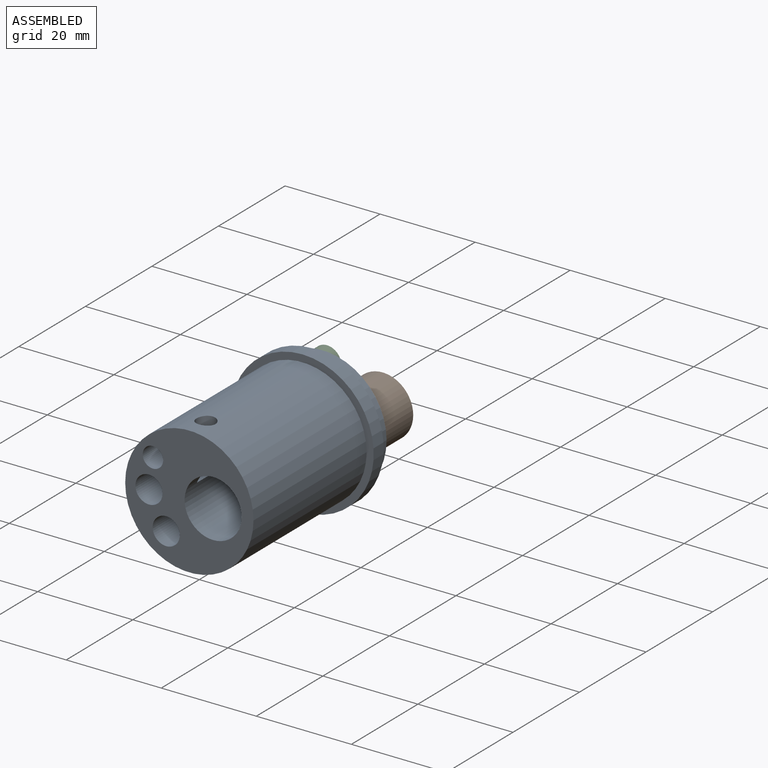
[diagram: assembled view]
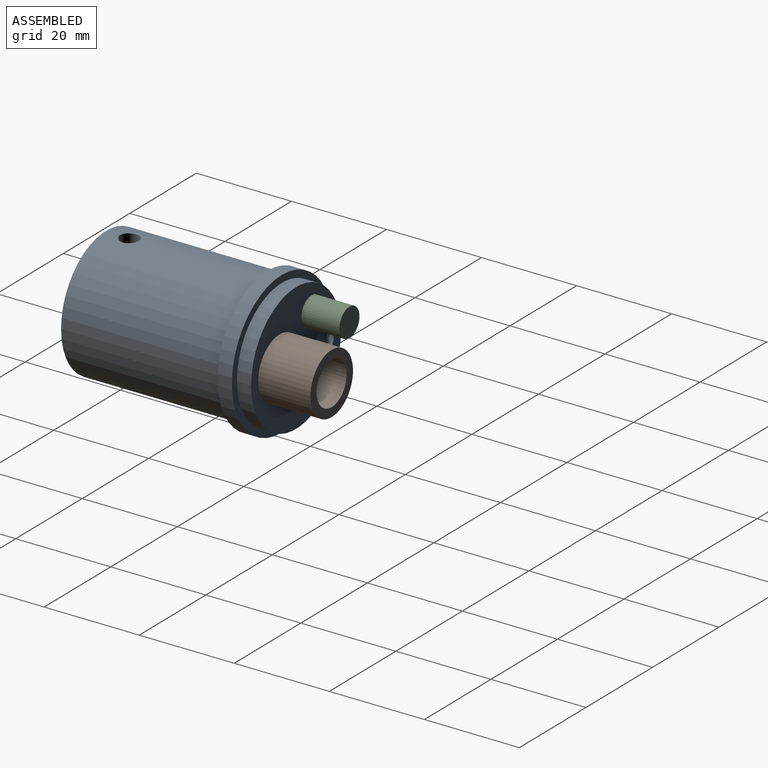
[diagram: assembled view, second angle]
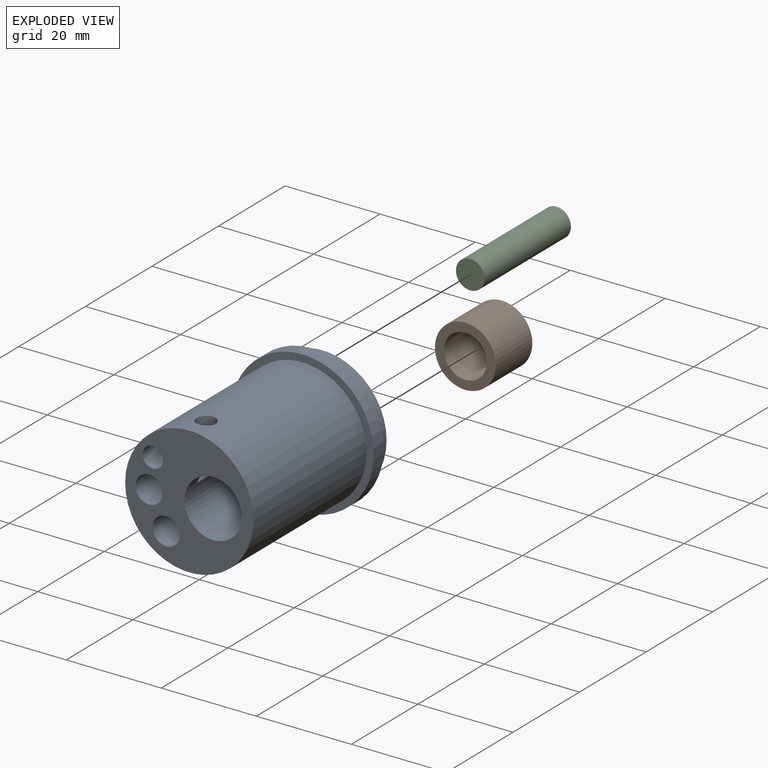
[diagram: exploded view]
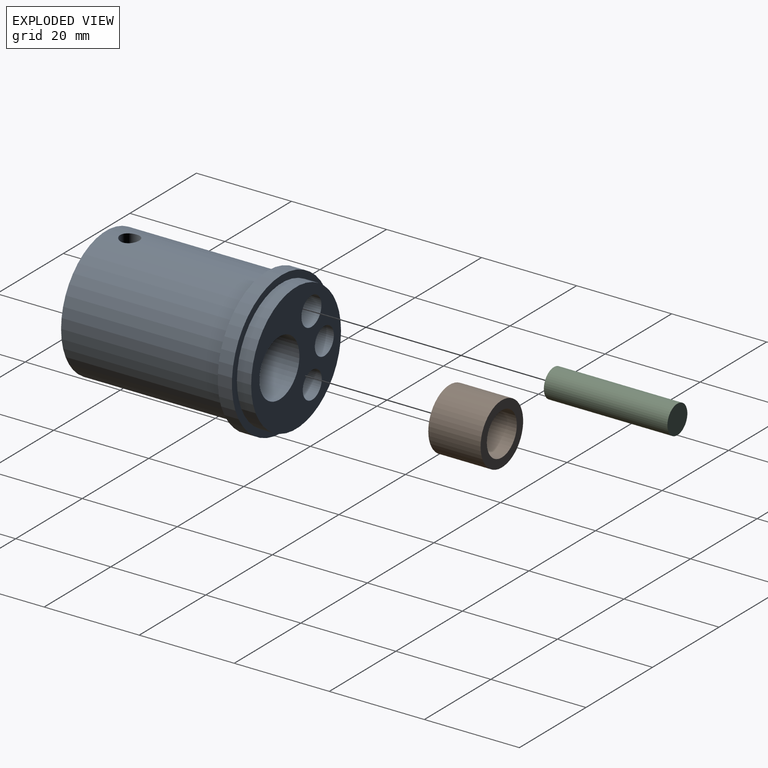
[diagram: exploded view, second angle]
ASSEMBLY  parts=3 mates=3
PART A: 18 faces, bbox 30x40x30 mm
  f0: cylinder r=15mm len=30mm, axis (0,-1,0), area 282.7mm2, adj f2,f5
  f1: cylinder r=13.5mm len=34mm, axis (0,-1,0), area 2858.8mm2, adj f2,f3,f14,f17
  f2: plane 30x30mm, normal (0,-1,0), area 134.3mm2, adj f0,f1
  f3: plane 27x27mm, normal (0,-1,0), area 393.9mm2, adj f1,f7,f8,f9,f10
  f4: cylinder r=13.5mm len=27mm, axis (0,1,0), area 254.5mm2, adj f5,f6
  f5: plane 30x30mm, normal (0,1,0), area 134.3mm2, adj f0,f4
  f6: plane 27x27mm, normal (0,1,0), area 380.1mm2, adj f4,f7,f8,f9,f12
  f7: cylinder r=6mm len=40mm, axis (0,-1,0), area 1494.2mm2, adj f3,f6,f14,f15
  f8: cylinder r=2.85mm len=40mm, axis (0,-1,0), area 716.3mm2, adj f3,f6
  f9: cylinder r=2.85mm len=40mm, axis (0,-1,0), area 716.3mm2, adj f3,f6
  f10: cylinder r=2.15mm len=20mm, axis (0,-1,0), area 270.2mm2, adj f3,f11
  f11: plane 4.3x4.3mm, normal (0,-1,0), area 14.5mm2, adj f10
  f12: cylinder r=3mm len=18mm, axis (0,1,0), area 339.3mm2, adj f6,f13
  f13: plane 6x6mm, normal (0,1,0), area 28.3mm2, adj f12
  f14: cylinder r=2mm len=11.25mm, axis (0,0,1), area 124.8mm2, adj f1,f7,f15
  f15: plane 3.84x1.44mm, normal (0,0,1), area 4.1mm2, adj f7,f14
  f16: plane 4x3.68mm, normal (0.39,0,-0.92), area 12.6mm2, adj f17
  f17: cylinder r=2mm len=7.09mm, axis (0.39,0,-0.92), area 74.5mm2, adj f1,f16
PART B: 4 faces, bbox 12.8x11x12.8 mm
  f0: cylinder r=4.5mm len=11mm, axis (0,-1,0), area 311mm2, adj f2,f3
  f1: cylinder r=6.4mm len=12.8mm, axis (0,-1,0), area 442.3mm2, adj f2,f3
  f2: plane 12.8x12.8mm, normal (0,1,0), area 65.1mm2, adj f0,f1
  f3: plane 12.8x12.8mm, normal (0,-1,0), area 65.1mm2, adj f0,f1
PART C: 3 faces, bbox 6x26x6 mm
  f0: cylinder r=3mm len=26mm, axis (0,-1,0), area 490.1mm2, adj f1,f2
  f1: plane 6x6mm, normal (0,1,0), area 28.3mm2, adj f0
  f2: plane 6x6mm, normal (0,-1,0), area 28.3mm2, adj f0
PLACE A t=(0,-3,13.5)mm
PLACE B t=(5,37,13.5)mm
PLACE C rot(axis=(0,-1,0),20.5deg) t=(-4.62,19,20.65)mm
MATE cylindrical C.f0 <-> A.f12  axis (0,-1,0) through (-4.62,32,20.65)mm
MATE planar C.f0 <-> A.f12  axis (0,-1,0) through (-4.62,19,20.65)mm
MATE fastened B.f0 <-> A.f7  axis (0,-1,0) through (5,37,13.5)mm
